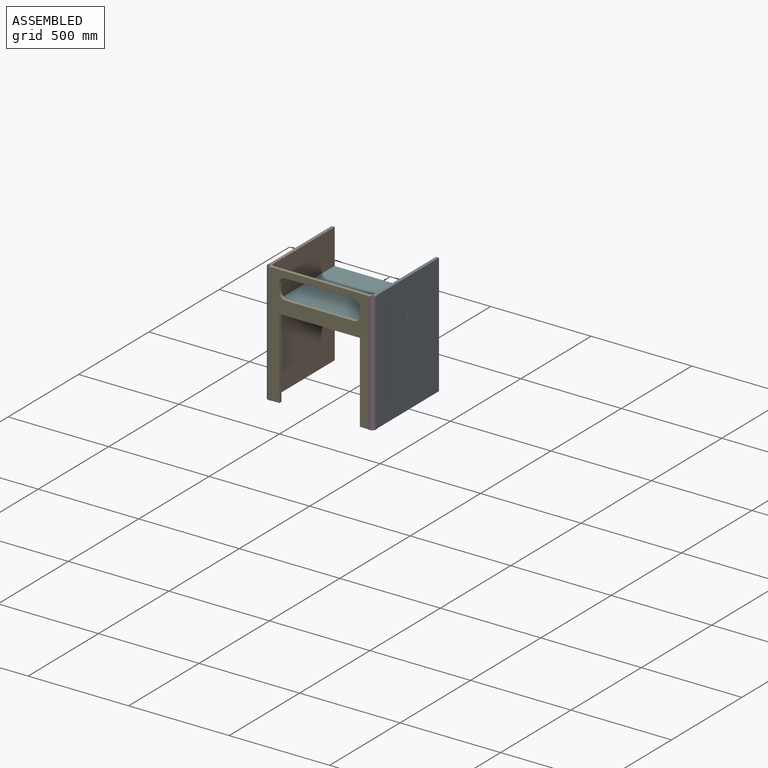
[diagram: assembled view]
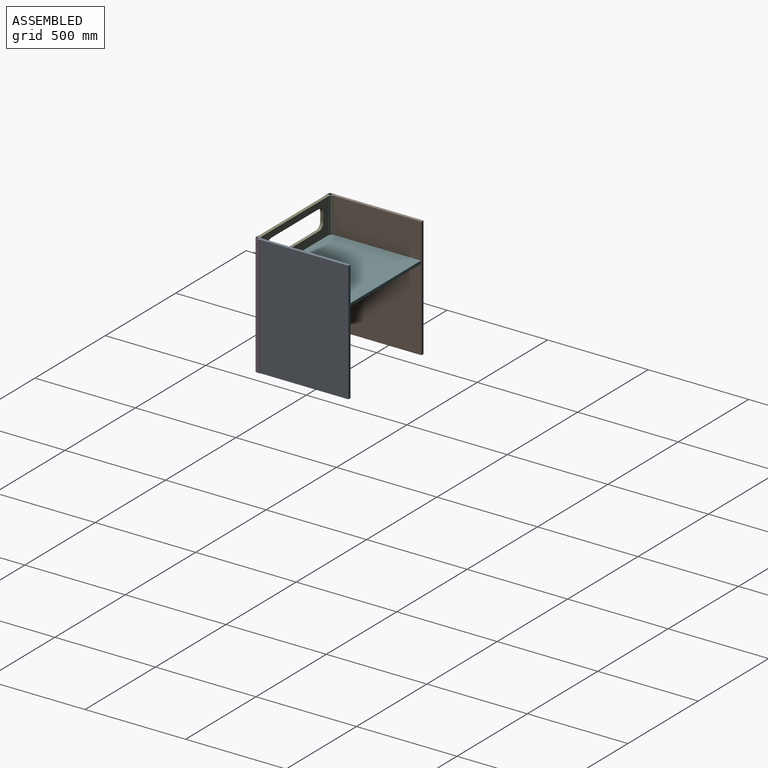
[diagram: assembled view, second angle]
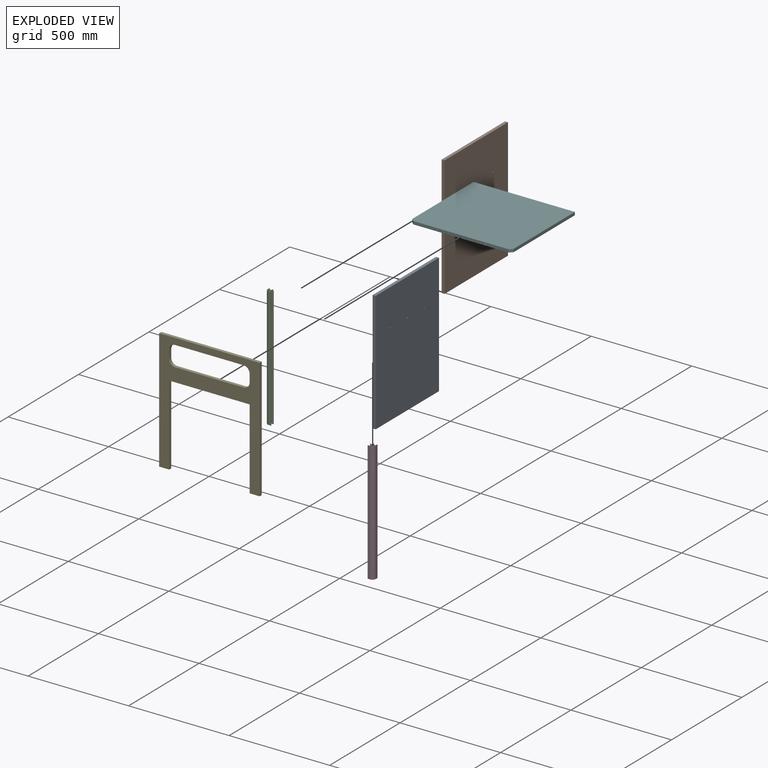
[diagram: exploded view]
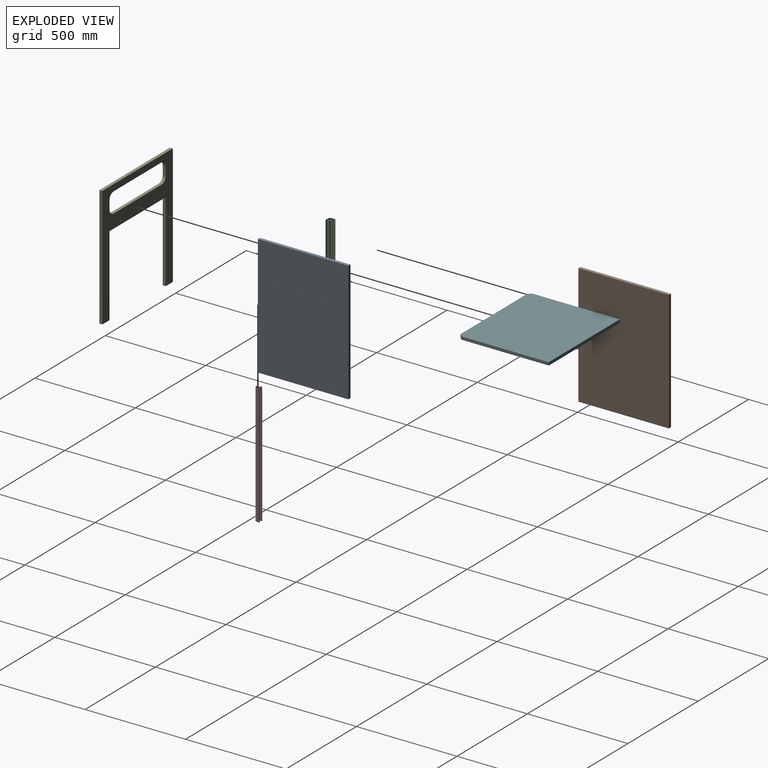
[diagram: exploded view, second angle]
ASSEMBLY  parts=6 mates=5
PART A: 9 faces, bbox 15x450x600 mm
  f0: plane 450x15mm, normal (0,0,-1), area 6750mm2, adj f1,f3,f4,f5
  f1: plane 600x15mm, normal (0,1,0), area 9000mm2, adj f0,f2,f4,f5
  f2: plane 450x15mm, normal (0,0,1), area 6750mm2, adj f1,f3,f4,f5
  f3: plane 600x15mm, normal (0,-1,0), area 9000mm2, adj f0,f2,f4,f5
  f4: plane 600x450mm, normal (1,0,0), area 269915.2mm2, adj f0,f1,f2,f3,f6,f7,f8
  f5: plane 600x450mm, normal (-1,0,0), area 269915.2mm2, adj f0,f1,f2,f3,f6,f7,f8
  f6: cylinder r=3mm len=15mm, axis (1,0,0), area 282.7mm2, adj f4,f5
  f7: cylinder r=3mm len=15mm, axis (1,0,0), area 282.7mm2, adj f4,f5
  f8: cylinder r=3mm len=15mm, axis (1,0,0), area 282.7mm2, adj f4,f5
PART B: same geometry as A
PART C: 20 faces, bbox 29x29x600 mm
  f0: plane 600x12mm, normal (-1,0,0), area 7200mm2, adj f1,f17,f18,f19
  f1: plane 600x2mm, normal (0,-1,0), area 1200mm2, adj f0,f2,f18,f19
  f2: plane 600x10mm, normal (1,0,0), area 6000mm2, adj f1,f3,f18,f19
  f3: plane 600x15mm, normal (0,-1,0), area 9000mm2, adj f2,f4,f18,f19
  f4: plane 600x10mm, normal (-1,0,0), area 6000mm2, adj f3,f5,f18,f19
  f5: plane 600x2mm, normal (0,-1,0), area 1200mm2, adj f4,f6,f18,f19
  f6: plane 600x10mm, normal (1,0,0), area 6000mm2, adj f5,f7,f18,f19
  f7: plane 600x10mm, normal (0,-1,0), area 6000mm2, adj f6,f8,f18,f19
  f8: plane 600x2mm, normal (1,0,0), area 1200mm2, adj f7,f9,f18,f19
  f9: plane 600x10mm, normal (0,1,0), area 6000mm2, adj f8,f10,f18,f19
  f10: plane 600x15mm, normal (1,0,0), area 9000mm2, adj f9,f11,f18,f19
  f11: plane 600x10mm, normal (0,-1,0), area 6000mm2, adj f10,f12,f18,f19
  f12: plane 600x2mm, normal (1,0,0), area 1200mm2, adj f11,f13,f18,f19
  f13: plane 600x12mm, normal (0,1,0), area 7200mm2, adj f12,f17,f18,f19
  f14: cylinder r=15mm len=600mm, axis (0,0,-1), area 14137.2mm2, adj f15,f16,f18,f19
  f15: plane 600x15mm, normal (-1,0,0), area 9000mm2, adj f14,f16,f18,f19
  f16: plane 600x15mm, normal (0,1,0), area 9000mm2, adj f14,f15,f18,f19
  f17: cylinder r=17mm len=600mm, axis (0,0,-1), area 16022.1mm2, adj f0,f13,f18,f19
  f18: plane 29x29mm, normal (0,0,1), area 202.3mm2, adj f0,f1,f2,f3,f4,f5,f6,f7
  f19: plane 29x29mm, normal (0,0,-1), area 202.3mm2, adj f0,f1,f2,f3,f4,f5,f6,f7
PART D: same geometry as C
PART E: 24 faces, bbox 500x15x600 mm
  f0: plane 600x500mm, normal (0,1,0), area 100687.7mm2, adj f2,f3,f4,f5,f6,f7,f8,f9
  f1: plane 600x500mm, normal (0,-1,0), area 100772.6mm2, adj f2,f3,f4,f5,f6,f7,f8,f9
  f2: plane 400x15mm, normal (0,0,-1), area 6000mm2, adj f0,f1,f3,f9
  f3: plane 400x15mm, normal (-1,0,0), area 6000mm2, adj f0,f1,f2,f4
  f4: plane 50x15mm, normal (0,0,-1), area 750mm2, adj f0,f1,f3,f5
  f5: plane 600x15mm, normal (1,0,0), area 9000mm2, adj f0,f1,f4,f6
  f6: plane 500x15mm, normal (0,0,1), area 7500mm2, adj f0,f1,f5,f7
  f7: plane 600x15mm, normal (-1,0,0), area 9000mm2, adj f0,f1,f6,f8
  f8: plane 50x15mm, normal (0,0,-1), area 750mm2, adj f0,f1,f7,f9
  f9: plane 400x15mm, normal (1,0,0), area 6000mm2, adj f0,f1,f2,f8
  f10: cylinder r=3mm len=12mm, axis (0,1,0), area 226.2mm2, adj f0,f11
  f11: plane 6x6mm, normal (0,1,0), area 28.3mm2, adj f10
  f12: cylinder r=3mm len=12mm, axis (0,1,0), area 226.2mm2, adj f0,f13
  f13: plane 6x6mm, normal (0,1,0), area 28.3mm2, adj f12
  f14: cylinder r=3mm len=12mm, axis (0,1,0), area 226.2mm2, adj f0,f15
  f15: plane 6x6mm, normal (0,1,0), area 28.3mm2, adj f14
  f16: cylinder r=30mm len=30mm, axis (0,1,0), area 706.9mm2, adj f0,f1,f17,f23
  f17: plane 40x15mm, normal (1,0,0), area 600mm2, adj f0,f1,f16,f18
  f18: cylinder r=30mm len=30mm, axis (0,1,0), area 706.9mm2, adj f0,f1,f17,f19
  f19: plane 340x15mm, normal (0,0,1), area 5100mm2, adj f0,f1,f18,f20
  f20: cylinder r=30mm len=30mm, axis (0,1,0), area 706.9mm2, adj f0,f1,f19,f21
  f21: plane 40x15mm, normal (-1,0,0), area 600mm2, adj f0,f1,f20,f22
  f22: cylinder r=30mm len=30mm, axis (0,1,0), area 706.9mm2, adj f0,f1,f21,f23
  f23: plane 340x15mm, normal (0,0,-1), area 5100mm2, adj f0,f1,f16,f22
PART F: 14 faces, bbox 504x450x15 mm
  f0: plane 504x15mm, normal (0,1,0), area 7560mm2, adj f1,f5,f6,f7
  f1: plane 435x15mm, normal (-1,0,0), area 6525mm2, adj f0,f2,f6,f7
  f2: plane 15x15mm, normal (-0.71,-0.71,0), area 318.2mm2, adj f1,f3,f6,f7
  f3: plane 474x15mm, normal (0,-1,0), area 7025.2mm2, adj f2,f4,f6,f7,f8,f10,f12
  f4: plane 15x15mm, normal (0.71,-0.71,0), area 318.2mm2, adj f3,f5,f6,f7
  f5: plane 435x15mm, normal (1,0,0), area 6525mm2, adj f0,f4,f6,f7
  f6: plane 504x450mm, normal (0,0,1), area 226575mm2, adj f0,f1,f2,f3,f4,f5
  f7: plane 504x450mm, normal (0,0,-1), area 226575mm2, adj f0,f1,f2,f3,f4,f5
  f8: cylinder r=3mm len=12mm, axis (0,-1,0), area 226.2mm2, adj f3,f9
  f9: plane 6x6mm, normal (0,-1,0), area 28.3mm2, adj f8
  f10: cylinder r=3mm len=12mm, axis (0,-1,0), area 226.2mm2, adj f3,f11
  f11: plane 6x6mm, normal (0,-1,0), area 28.3mm2, adj f10
  f12: cylinder r=3mm len=12mm, axis (0,-1,0), area 226.2mm2, adj f3,f13
  f13: plane 6x6mm, normal (0,-1,0), area 28.3mm2, adj f12
PLACE A rot(axis=(0,0,1),180deg) t=(138.98,-443.12,-240.36)mm
PLACE B rot(axis=(-0.26,-0.2,-0.94),0deg) t=(-395.02,6.88,-240.36)mm fixed
PLACE C rot(axis=(0,0,1),90deg) t=(-380.02,-445.12,-240.36)mm fixed
PLACE D rot(axis=(-0.71,-0.71,0),180deg) t=(123.98,-445.12,359.64)mm fixed
PLACE E rot(axis=(-0.31,0.26,-0.91),0deg) t=(121.98,-445.12,-240.36)mm fixed
PLACE F rot(axis=(-0.31,0.26,-0.91),0deg) t=(-128.02,-220.12,169.64)mm
MATE fastened E.f7 <-> C.f3  axis (-1,0,0) through (-378.02,-452.62,59.64)mm
MATE fastened D.f10 <-> A.f1  axis (0,1,0) through (131.48,-443.12,59.64)mm
MATE fastened E.f12 <-> F.f8  axis (0,1,0) through (-128.02,-445.12,177.14)mm
MATE fastened B.f3 <-> C.f10  axis (0,-1,0) through (-387.52,-443.12,59.64)mm
MATE fastened D.f3 <-> E.f5  axis (-1,0,0) through (121.98,-452.62,59.64)mm
